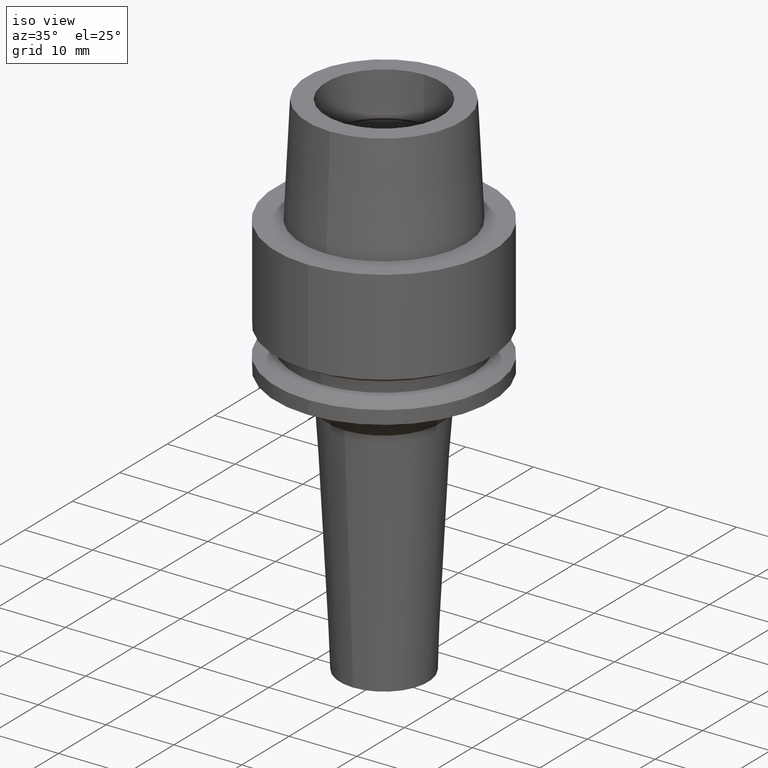
[diagram: clean part render]
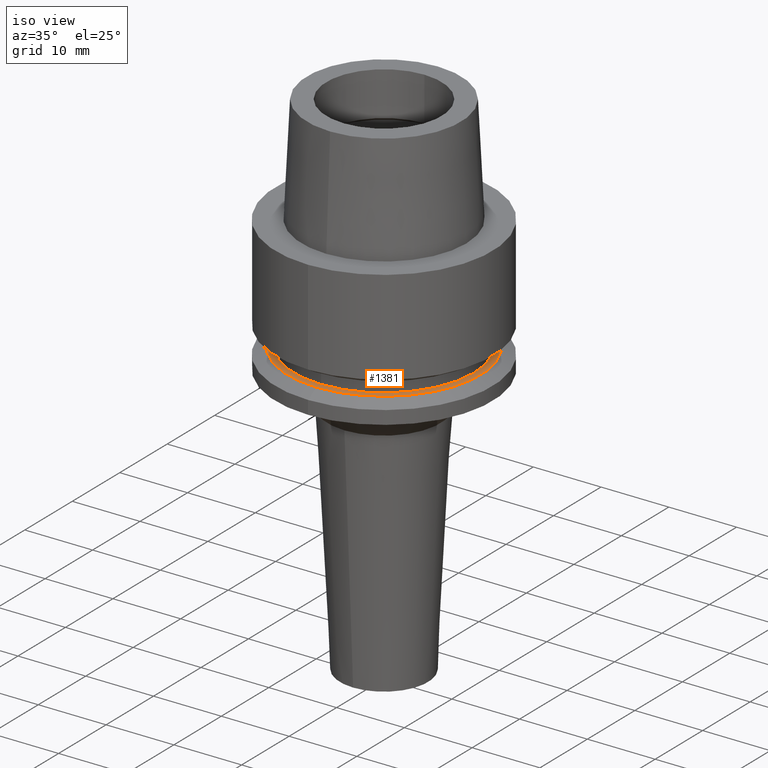
[diagram: same view with one face highlighted and labeled with its STEP entity id]
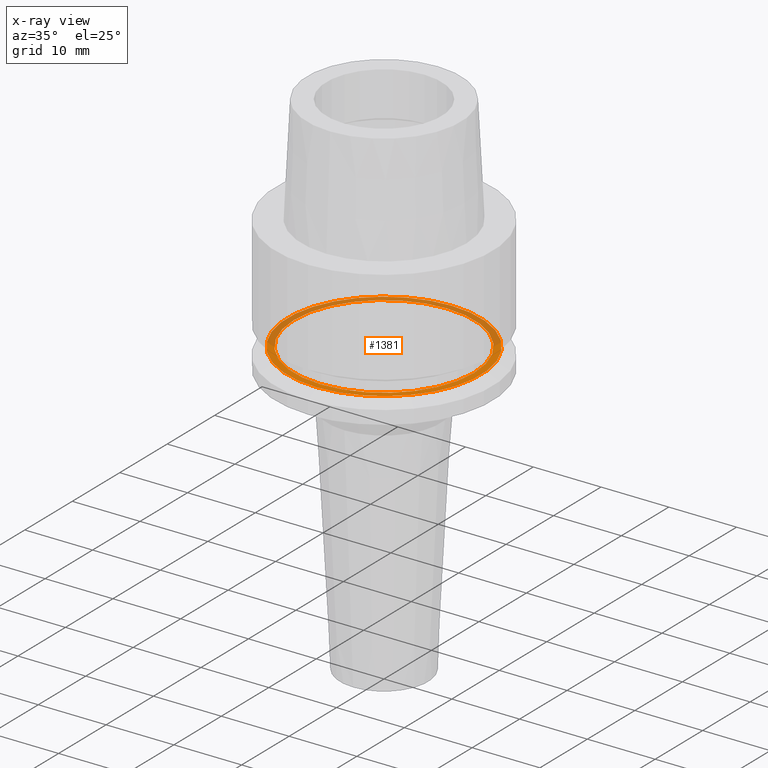
[diagram: x-ray of the same camera — body ghosted, the highlighted face saturated]
A machine part, iso view. The second image highlights one B-rep face of the part: STEP entity #1381.
The next image is the same camera in x-ray: the body ghosted, the highlighted face saturated — about 49% of this face is hidden behind the body in this view.
In plain terms, the highlighted planar face has unit normal (0, 0, -1).
Its self-contained STEP definition (entity closure, byte-faithful):
#566=CARTESIAN_POINT('',(0.E0,1.010206699503E-14,-1.7E1));
#567=DIRECTION('',(0.E0,0.E0,-1.E0));
#568=DIRECTION('',(0.E0,-1.E0,0.E0));
#569=AXIS2_PLACEMENT_3D('',#566,#567,#568);
#574=CARTESIAN_POINT('',(0.E0,1.010206699503E-14,-1.7E1));
#575=DIRECTION('',(0.E0,0.E0,-1.E0));
#576=DIRECTION('',(0.E0,1.E0,0.E0));
#577=AXIS2_PLACEMENT_3D('',#574,#575,#576);
#582=CARTESIAN_POINT('',(0.E0,1.467126865379E-14,-1.7E1));
#583=DIRECTION('',(0.E0,0.E0,1.E0));
#584=DIRECTION('',(0.E0,-1.E0,0.E0));
#585=AXIS2_PLACEMENT_3D('',#582,#583,#584);
#590=CARTESIAN_POINT('',(0.E0,1.467126865379E-14,-1.7E1));
#591=DIRECTION('',(0.E0,0.E0,1.E0));
#592=DIRECTION('',(0.E0,1.E0,0.E0));
#593=AXIS2_PLACEMENT_3D('',#590,#591,#592);
#808=CARTESIAN_POINT('',(0.E0,1.423205080757E1,-1.7E1));
#809=VERTEX_POINT('',#808);
#810=CARTESIAN_POINT('',(0.E0,-1.423205080757E1,-1.7E1));
#811=VERTEX_POINT('',#810);
#812=CARTESIAN_POINT('',(0.E0,-1.325E1,-1.7E1));
#813=CARTESIAN_POINT('',(0.E0,1.325E1,-1.7E1));
#814=VERTEX_POINT('',#812);
#815=VERTEX_POINT('',#813);
#1366=CARTESIAN_POINT('',(0.E0,1.016456843292E-14,-1.7E1));
#1367=DIRECTION('',(0.E0,0.E0,-1.E0));
#1368=DIRECTION('',(0.E0,-1.E0,0.E0));
#1369=AXIS2_PLACEMENT_3D('',#1366,#1367,#1368);
#1370=PLANE('',#1369);
#1371=ORIENTED_EDGE('',*,*,#1345,.T.);
#1372=ORIENTED_EDGE('',*,*,#1361,.T.);
#1373=EDGE_LOOP('',(#1371,#1372));
#1374=FACE_OUTER_BOUND('',#1373,.F.);
#1376=ORIENTED_EDGE('',*,*,#1375,.T.);
#1378=ORIENTED_EDGE('',*,*,#1377,.T.);
#1379=EDGE_LOOP('',(#1376,#1378));
#1380=FACE_BOUND('',#1379,.F.);
#570=CIRCLE('',#569,1.423205080757E1);
#578=CIRCLE('',#577,1.423205080757E1);
#586=CIRCLE('',#585,1.325E1);
#594=CIRCLE('',#593,1.325E1);
#1345=EDGE_CURVE('',#811,#809,#570,.T.);
#1361=EDGE_CURVE('',#809,#811,#578,.T.);
#1375=EDGE_CURVE('',#814,#815,#586,.T.);
#1377=EDGE_CURVE('',#815,#814,#594,.T.);
#1381=ADVANCED_FACE('',(#1374,#1380),#1370,.F.);